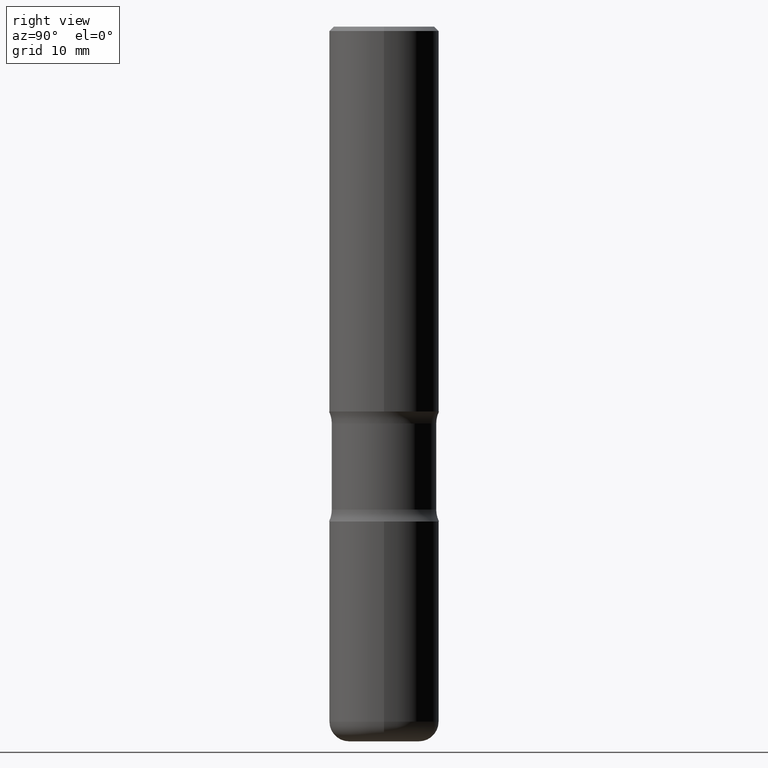
[diagram: clean part render]
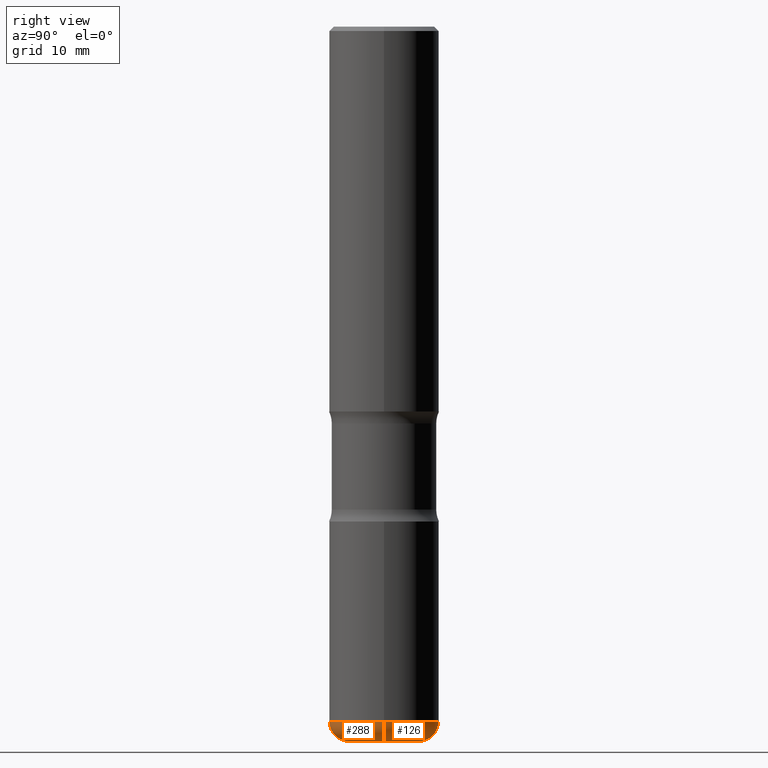
[diagram: same view with one multi-face feature highlighted, each face labeled with its STEP entity id]
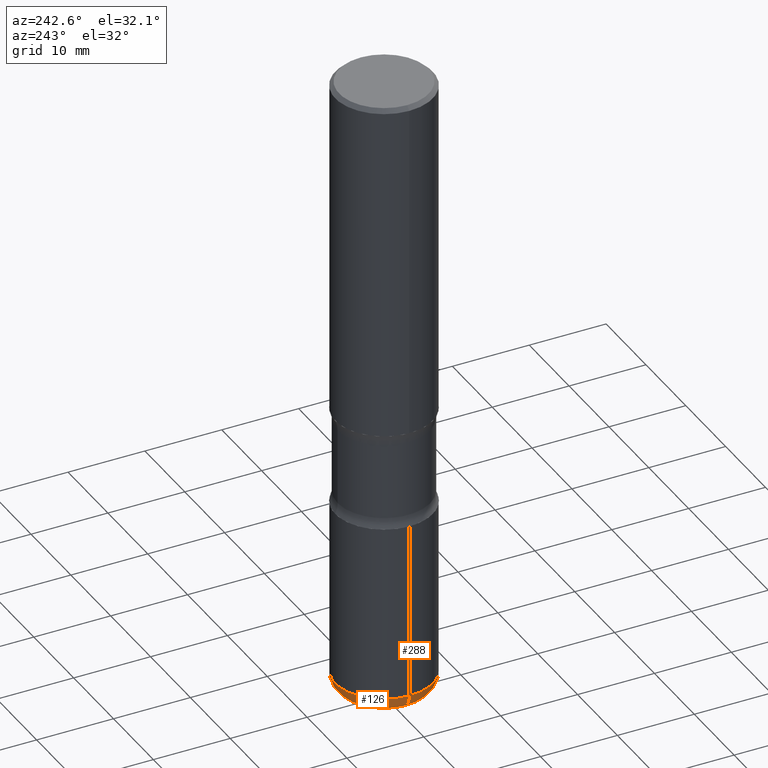
[diagram: same view with one multi-face feature highlighted, each face labeled with its STEP entity id]
A machine part, right view. The highlighted faces form ONE feature: a constant-radius fillet chain: 2 tangent blend faces with common blend radius 2.286 mm. The faces share edges in the B-rep.
A second angle (auxiliary view) of the same feature is appended — it is thin or edge-on in the first view.
Their STEP definitions:
[1] entity #288 (Torus):
#2 = FACE_OUTER_BOUND ( 'NONE', #33, .T. ) ;
#6 = DIRECTION ( 'NONE',  ( 1.000000000000000000, -6.982962677686276177E-15, 0.000000000000000000 ) ) ;
#7 = CIRCLE ( 'NONE', #61, 0.1600000000000004474 ) ;
#29 = DIRECTION ( 'NONE',  ( 1.000000000000000000, -6.982962677686264344E-15, 0.000000000000000000 ) ) ;
#32 = CARTESIAN_POINT ( 'NONE',  ( -0.1600000000000004474, -9.733585082684073752E-15, -3.249999999999999556 ) ) ;
#33 = EDGE_LOOP ( 'NONE', ( #318, #264, #444, #414 ) ) ;
#51 = DIRECTION ( 'NONE',  ( -2.445468806185136597E-29, 3.491481338843145583E-15, 1.000000000000000000 ) ) ;
#53 = AXIS2_PLACEMENT_3D ( 'NONE', #438, #51, #86 ) ;
#61 = AXIS2_PLACEMENT_3D ( 'NONE', #375, #332, #29 ) ;
#86 = DIRECTION ( 'NONE',  ( 1.000000000000000000, -6.982962677686269077E-15, 4.883557194083113462E-29 ) ) ;
#111 = VERTEX_POINT ( 'NONE', #32 ) ;
#114 = EDGE_CURVE ( 'NONE', #111, #542, #7, .T. ) ;
#142 = CARTESIAN_POINT ( 'NONE',  ( -0.1600000000000004474, -9.896212653528176699E-15, -3.160000000000000142 ) ) ;
#150 = CIRCLE ( 'NONE', #395, 0.08999999999999962197 ) ;
#159 = AXIS2_PLACEMENT_3D ( 'NONE', #170, #261, #6 ) ;
#170 = CARTESIAN_POINT ( 'NONE',  ( 0.1600000000000004474, -1.215035505917414604E-14, -3.160000000000000142 ) ) ;
#231 = CIRCLE ( 'NONE', #159, 0.08999999999999962197 ) ;
#233 = VERTEX_POINT ( 'NONE', #477 ) ;
#260 = EDGE_CURVE ( 'NONE', #542, #233, #231, .T. ) ;
#261 = DIRECTION ( 'NONE',  ( -6.982962677686266711E-15, -1.000000000000000000, 3.491481338843145583E-15 ) ) ;
#264 = ORIENTED_EDGE ( 'NONE', *, *, #114, .T. ) ;
#288 = ADVANCED_FACE ( 'NONE', ( #2 ), #303, .T. ) ;
#303 = TOROIDAL_SURFACE ( 'NONE', #53, 0.1600000000000004474, 0.08999999999999963585 ) ;
#309 = DIRECTION ( 'NONE',  ( 1.000000000000000000, -6.982962677686267499E-15, 0.000000000000000000 ) ) ;
#318 = ORIENTED_EDGE ( 'NONE', *, *, #535, .F. ) ;
#320 = CARTESIAN_POINT ( 'NONE',  ( 0.1600000000000004474, -1.246458837967002773E-14, -3.249999999999999556 ) ) ;
#332 = DIRECTION ( 'NONE',  ( -2.445468806185136597E-29, 3.491481338843145583E-15, 1.000000000000000000 ) ) ;
#340 = CIRCLE ( 'NONE', #481, 0.2500000000000003886 ) ;
#375 = CARTESIAN_POINT ( 'NONE',  ( 7.947773620101692818E-29, -1.134731435124022127E-14, -3.249999999999999556 ) ) ;
#395 = AXIS2_PLACEMENT_3D ( 'NONE', #142, #528, #540 ) ;
#398 = CARTESIAN_POINT ( 'NONE',  ( -0.2500000000000002220, -9.256724191344087541E-15, -3.160000000000000142 ) ) ;
#405 = EDGE_CURVE ( 'NONE', #529, #233, #340, .T. ) ;
#414 = ORIENTED_EDGE ( 'NONE', *, *, #405, .F. ) ;
#438 = CARTESIAN_POINT ( 'NONE',  ( 7.727681427545032274E-29, -1.103308103074433958E-14, -3.160000000000000142 ) ) ;
#444 = ORIENTED_EDGE ( 'NONE', *, *, #260, .T. ) ;
#448 = DIRECTION ( 'NONE',  ( -2.445468806185136597E-29, 3.491481338843145583E-15, 1.000000000000000000 ) ) ;
#477 = CARTESIAN_POINT ( 'NONE',  ( 0.2500000000000002220, -1.277882170016590942E-14, -3.160000000000000142 ) ) ;
#481 = AXIS2_PLACEMENT_3D ( 'NONE', #485, #448, #309 ) ;
#485 = CARTESIAN_POINT ( 'NONE',  ( 7.727681427545032274E-29, -1.103308103074433958E-14, -3.160000000000000142 ) ) ;
#528 = DIRECTION ( 'NONE',  ( 7.105427357601001859E-15, 1.000000000000000000, -3.491481338843145583E-15 ) ) ;
#529 = VERTEX_POINT ( 'NONE', #398 ) ;
#535 = EDGE_CURVE ( 'NONE', #111, #529, #150, .T. ) ;
#540 = DIRECTION ( 'NONE',  ( -1.000000000000000000, 7.105427357600998703E-15, 0.000000000000000000 ) ) ;
#542 = VERTEX_POINT ( 'NONE', #320 ) ;
[2] entity #126 (Torus):
#6 = DIRECTION ( 'NONE',  ( 1.000000000000000000, -6.982962677686276177E-15, 0.000000000000000000 ) ) ;
#32 = CARTESIAN_POINT ( 'NONE',  ( -0.1600000000000004474, -9.733585082684073752E-15, -3.249999999999999556 ) ) ;
#37 = DIRECTION ( 'NONE',  ( 1.000000000000000000, -6.982962677686267499E-15, 0.000000000000000000 ) ) ;
#45 = EDGE_CURVE ( 'NONE', #233, #529, #379, .T. ) ;
#46 = AXIS2_PLACEMENT_3D ( 'NONE', #385, #346, #37 ) ;
#77 = FACE_OUTER_BOUND ( 'NONE', #365, .T. ) ;
#111 = VERTEX_POINT ( 'NONE', #32 ) ;
#123 = DIRECTION ( 'NONE',  ( -2.445468806185136597E-29, 3.491481338843145583E-15, 1.000000000000000000 ) ) ;
#126 = ADVANCED_FACE ( 'NONE', ( #77 ), #207, .T. ) ;
#142 = CARTESIAN_POINT ( 'NONE',  ( -0.1600000000000004474, -9.896212653528176699E-15, -3.160000000000000142 ) ) ;
#149 = AXIS2_PLACEMENT_3D ( 'NONE', #516, #123, #352 ) ;
#150 = CIRCLE ( 'NONE', #395, 0.08999999999999962197 ) ;
#157 = ORIENTED_EDGE ( 'NONE', *, *, #260, .F. ) ;
#159 = AXIS2_PLACEMENT_3D ( 'NONE', #170, #261, #6 ) ;
#170 = CARTESIAN_POINT ( 'NONE',  ( 0.1600000000000004474, -1.215035505917414604E-14, -3.160000000000000142 ) ) ;
#202 = ORIENTED_EDGE ( 'NONE', *, *, #45, .F. ) ;
#205 = CARTESIAN_POINT ( 'NONE',  ( 7.727681427545032274E-29, -1.103308103074433958E-14, -3.160000000000000142 ) ) ;
#207 = TOROIDAL_SURFACE ( 'NONE', #416, 0.1600000000000004474, 0.08999999999999963585 ) ;
#231 = CIRCLE ( 'NONE', #159, 0.08999999999999962197 ) ;
#233 = VERTEX_POINT ( 'NONE', #477 ) ;
#260 = EDGE_CURVE ( 'NONE', #542, #233, #231, .T. ) ;
#261 = DIRECTION ( 'NONE',  ( -6.982962677686266711E-15, -1.000000000000000000, 3.491481338843145583E-15 ) ) ;
#277 = DIRECTION ( 'NONE',  ( -2.445468806185136597E-29, 3.491481338843145583E-15, 1.000000000000000000 ) ) ;
#312 = EDGE_CURVE ( 'NONE', #542, #111, #371, .T. ) ;
#320 = CARTESIAN_POINT ( 'NONE',  ( 0.1600000000000004474, -1.246458837967002773E-14, -3.249999999999999556 ) ) ;
#346 = DIRECTION ( 'NONE',  ( -2.445468806185136597E-29, 3.491481338843145583E-15, 1.000000000000000000 ) ) ;
#352 = DIRECTION ( 'NONE',  ( 1.000000000000000000, -6.982962677686264344E-15, 0.000000000000000000 ) ) ;
#365 = EDGE_LOOP ( 'NONE', ( #454, #421, #202, #157 ) ) ;
#371 = CIRCLE ( 'NONE', #149, 0.1600000000000004474 ) ;
#379 = CIRCLE ( 'NONE', #46, 0.2500000000000003886 ) ;
#385 = CARTESIAN_POINT ( 'NONE',  ( 7.727681427545032274E-29, -1.103308103074433958E-14, -3.160000000000000142 ) ) ;
#395 = AXIS2_PLACEMENT_3D ( 'NONE', #142, #528, #540 ) ;
#398 = CARTESIAN_POINT ( 'NONE',  ( -0.2500000000000002220, -9.256724191344087541E-15, -3.160000000000000142 ) ) ;
#416 = AXIS2_PLACEMENT_3D ( 'NONE', #205, #277, #504 ) ;
#421 = ORIENTED_EDGE ( 'NONE', *, *, #535, .T. ) ;
#454 = ORIENTED_EDGE ( 'NONE', *, *, #312, .T. ) ;
#477 = CARTESIAN_POINT ( 'NONE',  ( 0.2500000000000002220, -1.277882170016590942E-14, -3.160000000000000142 ) ) ;
#504 = DIRECTION ( 'NONE',  ( 1.000000000000000000, -6.982962677686269077E-15, 4.883557194083113462E-29 ) ) ;
#516 = CARTESIAN_POINT ( 'NONE',  ( 7.947773620101692818E-29, -1.134731435124022127E-14, -3.249999999999999556 ) ) ;
#528 = DIRECTION ( 'NONE',  ( 7.105427357601001859E-15, 1.000000000000000000, -3.491481338843145583E-15 ) ) ;
#529 = VERTEX_POINT ( 'NONE', #398 ) ;
#535 = EDGE_CURVE ( 'NONE', #111, #529, #150, .T. ) ;
#540 = DIRECTION ( 'NONE',  ( -1.000000000000000000, 7.105427357600998703E-15, 0.000000000000000000 ) ) ;
#542 = VERTEX_POINT ( 'NONE', #320 ) ;